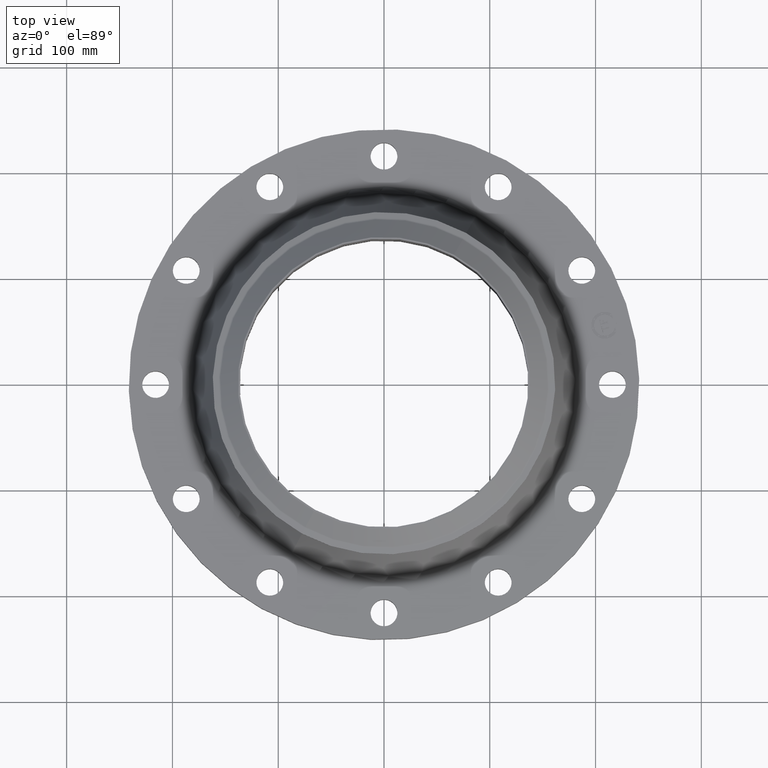
[diagram: clean part render]
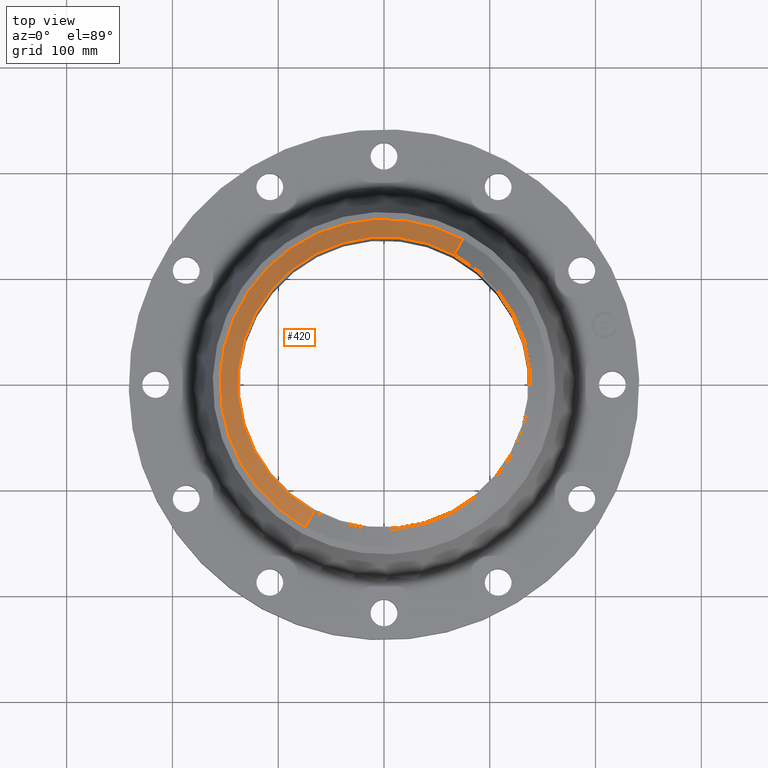
[diagram: same view with one face highlighted and labeled with its STEP entity id]
A machine part, top view. The second image highlights one B-rep face of the part: STEP entity #420.
In plain terms, the highlighted conical surface has half-angle 52.5 deg.
Its self-contained STEP definition (entity closure, byte-faithful):
#368=AXIS2_PLACEMENT_3D('Circle Axis2P3D',#366,#367,$) ;
#381=AXIS2_PLACEMENT_3D('Cone Axis2P3D',#378,#379,#380) ;
#411=AXIS2_PLACEMENT_3D('Circle Axis2P3D',#409,#410,$) ;
#344=CARTESIAN_POINT('Vertex',(-2.92484742452,-5.35389729846,3.99108306753)) ;
#351=CARTESIAN_POINT('Vertex',(2.92484742452,5.35389729846,3.99108306753)) ;
#366=CARTESIAN_POINT('Axis2P3D Location',(0.,0.,3.99108306753)) ;
#378=CARTESIAN_POINT('Axis2P3D Location',(0.,0.,4.50000000002)) ;
#383=CARTESIAN_POINT('Line Origine',(-2.76586189534,-5.06287623938,4.24554153377)) ;
#387=CARTESIAN_POINT('Vertex',(-2.60687636617,-4.7718551803,4.50000000002)) ;
#390=CARTESIAN_POINT('Line Origine',(2.76586189534,5.06287623938,4.24554153377)) ;
#394=CARTESIAN_POINT('Vertex',(2.60687636617,4.7718551803,4.50000000002)) ;
#409=CARTESIAN_POINT('Axis2P3D Location',(0.,0.,4.50000000002)) ;
#367=DIRECTION('Axis2P3D Direction',(0.,-0.,-0.0393700787402)) ;
#379=DIRECTION('Axis2P3D Direction',(-0.,-0.,-0.0393700787402)) ;
#380=DIRECTION('Axis2P3D XDirection',(-0.0188750212049,-0.0345504945626,0.)) ;
#384=DIRECTION('Vector Direction',(-0.014974561121,-0.02741075027,-0.023966985394)) ;
#391=DIRECTION('Vector Direction',(0.014974561121,0.02741075027,-0.023966985394)) ;
#410=DIRECTION('Axis2P3D Direction',(0.,-0.,-0.0393700787402)) ;
#385=VECTOR('Line Direction',#384,0.0393700787402) ;
#392=VECTOR('Line Direction',#391,0.0393700787402) ;
#415=ORIENTED_EDGE('',*,*,#396,.T.) ;
#416=ORIENTED_EDGE('',*,*,#370,.F.) ;
#417=ORIENTED_EDGE('',*,*,#389,.F.) ;
#418=ORIENTED_EDGE('',*,*,#413,.T.) ;
#420=ADVANCED_FACE('PartBody',(#419),#382,.T.) ;
#369=CIRCLE('generated circle',#368,6.10073345911) ;
#412=CIRCLE('generated circle',#411,5.43750000002) ;
#382=CONICAL_SURFACE('Cone',#381,5.43750000002,0.916297857297) ;
#370=EDGE_CURVE('',#345,#352,#369,.T.) ;
#389=EDGE_CURVE('',#388,#345,#386,.T.) ;
#396=EDGE_CURVE('',#395,#352,#393,.T.) ;
#413=EDGE_CURVE('',#388,#395,#412,.T.) ;
#414=EDGE_LOOP('',(#415,#416,#417,#418)) ;
#419=FACE_OUTER_BOUND('',#414,.T.) ;
#386=LINE('Line',#383,#385) ;
#393=LINE('Line',#390,#392) ;
#345=VERTEX_POINT('',#344) ;
#352=VERTEX_POINT('',#351) ;
#388=VERTEX_POINT('',#387) ;
#395=VERTEX_POINT('',#394) ;